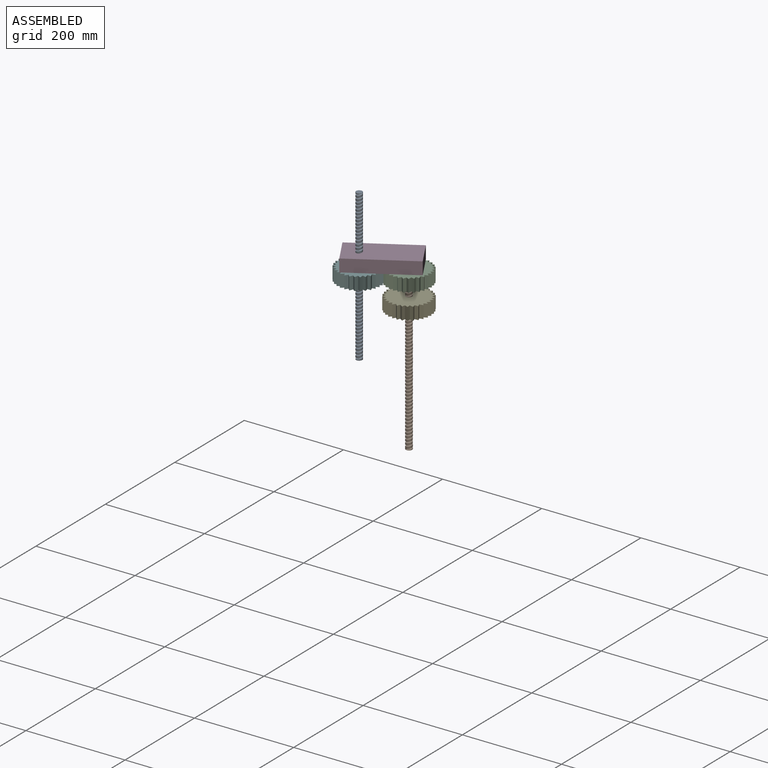
[diagram: assembled view]
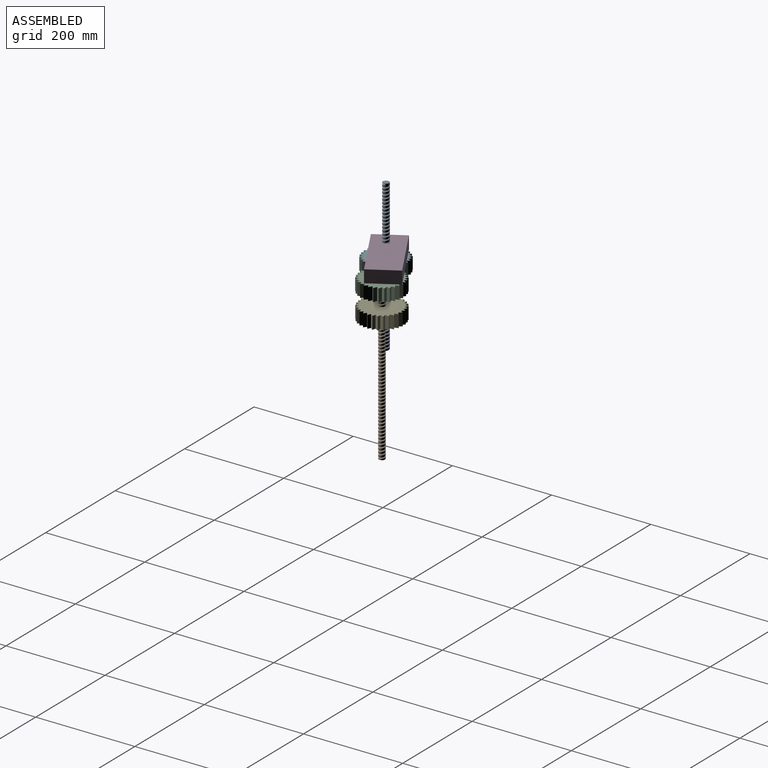
[diagram: assembled view, second angle]
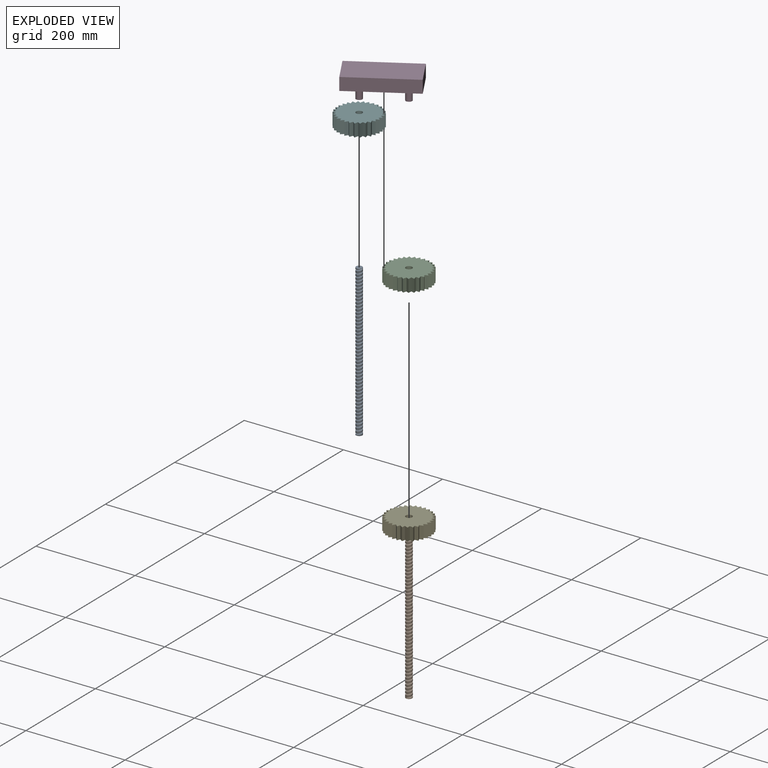
[diagram: exploded view]
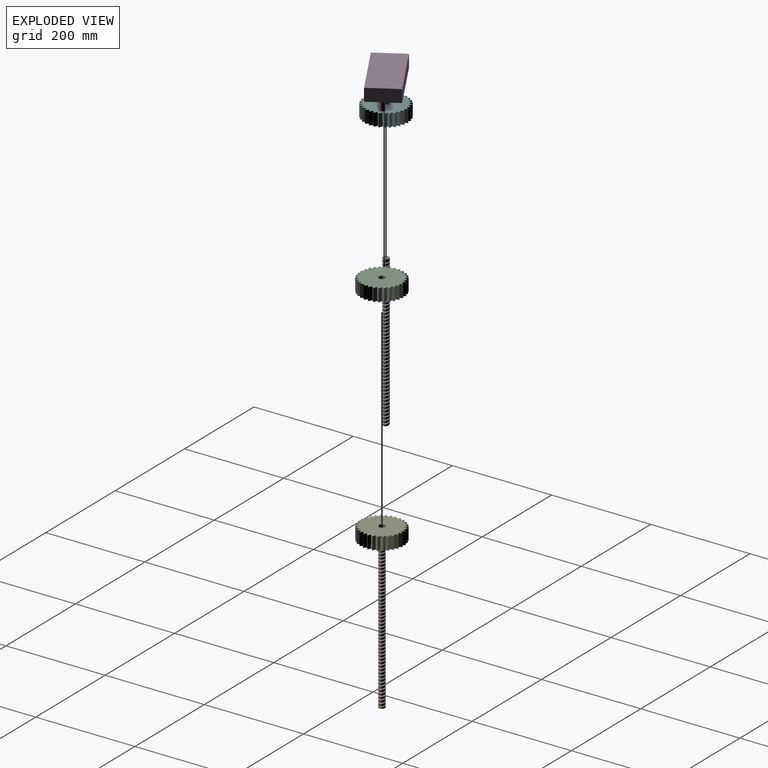
[diagram: exploded view, second angle]
ASSEMBLY  parts=6 mates=6
PART A: 6 faces, bbox 13.4x307x15.4 mm
  f0: cylinder r=6.35mm len=304.8mm, axis (0,1,0), area 10728.7mm2, adj f1,f2,f3,f4,f5
  f1: plane 13.43x12.09mm, normal (0,-1,0), area 111.1mm2, adj f0,f4,f5
  f2: plane 12.7x12.7mm, normal (0,1,0), area 126.7mm2, adj f0
  f3: plane 2.54x2.2mm, normal (0,0,-1), area 2.8mm2, adj f0,f4,f5
  f4: bspline ~306.07x14.66mm, area 4068.5mm2, adj f0,f1,f3,f5
  f5: bspline ~305.01x14.66mm, area 4044.6mm2, adj f0,f1,f3,f4
PART B: same geometry as A
PART C: 63 faces, bbox 88.4x88.1x25.4 mm
  f0: plane 25.4x6.87mm, normal (-0.07,-1,0), area 175mm2, adj f1,f59,f60,f61
  f1: plane 25.4x7.48mm, normal (-0.96,0.27,0), area 197.5mm2, adj f0,f2,f60,f61
  f2: plane 25.4x6.82mm, normal (0.14,-0.99,0), area 175mm2, adj f1,f3,f60,f61
  f3: plane 25.4x7.76mm, normal (-1,0.07,0), area 197.5mm2, adj f2,f4,f60,f61
  f4: plane 25.4x6.47mm, normal (0.35,-0.94,0), area 175mm2, adj f3,f5,f60,f61
  f5: plane 25.4x7.7mm, normal (-0.99,-0.14,0), area 197.5mm2, adj f4,f6,f60,f61
  f6: plane 25.4x5.83mm, normal (0.53,-0.85,0), area 175mm2, adj f5,f7,f60,f61
  f7: plane 25.4x7.31mm, normal (-0.94,-0.34,0), area 197.5mm2, adj f6,f8,f60,f61
  f8: plane 25.4x4.94mm, normal (0.7,-0.72,0), area 175mm2, adj f7,f9,f60,f61
  f9: plane 25.4x6.59mm, normal (-0.85,-0.53,0), area 197.5mm2, adj f8,f10,f60,f61
  f10: plane 25.4x5.73mm, normal (0.83,-0.56,0), area 175mm2, adj f9,f11,f60,f61
  f11: plane 25.4x5.59mm, normal (-0.72,-0.7,0), area 197.5mm2, adj f10,f12,f60,f61
  f12: plane 25.4x6.4mm, normal (0.93,-0.37,0), area 175mm2, adj f11,f13,f60,f61
  f13: plane 25.4x6.45mm, normal (-0.56,-0.83,0), area 197.5mm2, adj f12,f14,f60,f61
  f14: plane 25.4x6.79mm, normal (0.99,-0.17,0), area 175mm2, adj f13,f15,f60,f61
  f15: plane 25.4x7.21mm, normal (-0.37,-0.93,0), area 197.5mm2, adj f14,f16,f60,f61
  f16: plane 25.4x6.88mm, normal (1,0.04,0), area 175mm2, adj f15,f17,f60,f61
  f17: plane 25.4x7.66mm, normal (-0.17,-0.99,0), area 197.5mm2, adj f16,f18,f60,f61
  f18: plane 25.4x6.68mm, normal (0.97,0.25,0), area 175mm2, adj f17,f19,f60,f61
  f19: plane 25.4x7.77mm, normal (0.04,-1,0), area 197.5mm2, adj f18,f20,f60,f61
  f20: plane 25.4x6.18mm, normal (0.9,0.44,0), area 175mm2, adj f19,f21,f60,f61
  f21: plane 25.4x7.54mm, normal (0.24,-0.97,0), area 197.5mm2, adj f20,f22,f60,f61
  f22: plane 25.4x5.41mm, normal (0.79,0.62,0), area 175mm2, adj f21,f23,f60,f61
  f23: plane 25.4x6.99mm, normal (0.44,-0.9,0), area 197.5mm2, adj f22,f24,f60,f61
  f24: plane 25.4x5.29mm, normal (0.64,0.77,0), area 175mm2, adj f23,f25,f60,f61
  f25: plane 25.4x6.12mm, normal (0.62,-0.79,0), area 197.5mm2, adj f24,f26,f60,f61
  f26: plane 25.4x6.09mm, normal (0.47,0.88,0), area 175mm2, adj f25,f27,f60,f61
  f27: plane 25.4x5.96mm, normal (0.77,-0.64,0), area 197.5mm2, adj f26,f28,f60,f61
  f28: plane 25.4x6.63mm, normal (0.27,0.96,0), area 175mm2, adj f27,f29,f60,f61
  f29: plane 25.4x6.87mm, normal (0.88,-0.47,0), area 197.5mm2, adj f28,f30,f60,f61
  f30: plane 25.4x6.87mm, normal (0.07,1,0), area 175mm2, adj f29,f31,f60,f61
  f31: plane 25.4x7.48mm, normal (0.96,-0.27,0), area 197.5mm2, adj f30,f32,f60,f61
  f32: plane 25.4x6.82mm, normal (-0.14,0.99,0), area 175mm2, adj f31,f33,f60,f61
  f33: plane 25.4x7.76mm, normal (1,-0.07,0), area 197.5mm2, adj f32,f34,f60,f61
  f34: plane 25.4x6.47mm, normal (-0.35,0.94,0), area 175mm2, adj f33,f35,f60,f61
  f35: plane 25.4x7.7mm, normal (0.99,0.14,0), area 197.5mm2, adj f34,f36,f60,f61
  f36: plane 25.4x5.83mm, normal (-0.53,0.85,0), area 175mm2, adj f35,f37,f60,f61
  f37: plane 25.4x7.31mm, normal (0.94,0.34,0), area 197.5mm2, adj f36,f38,f60,f61
  f38: plane 25.4x4.94mm, normal (-0.7,0.72,0), area 175mm2, adj f37,f39,f60,f61
  f39: plane 25.4x6.59mm, normal (0.85,0.53,0), area 197.5mm2, adj f38,f40,f60,f61
  f40: plane 25.4x5.73mm, normal (-0.83,0.56,0), area 175mm2, adj f39,f41,f60,f61
  f41: plane 25.4x5.59mm, normal (0.72,0.7,0), area 197.5mm2, adj f40,f42,f60,f61
  f42: plane 25.4x6.4mm, normal (-0.93,0.37,0), area 175mm2, adj f41,f43,f60,f61
  f43: plane 25.4x6.45mm, normal (0.56,0.83,0), area 197.5mm2, adj f42,f44,f60,f61
  f44: plane 25.4x6.79mm, normal (-0.99,0.17,0), area 175mm2, adj f43,f45,f60,f61
  f45: plane 25.4x7.21mm, normal (0.37,0.93,0), area 197.5mm2, adj f44,f46,f60,f61
  f46: plane 25.4x6.88mm, normal (-1,-0.04,0), area 175mm2, adj f45,f47,f60,f61
  f47: plane 25.4x7.66mm, normal (0.17,0.99,0), area 197.5mm2, adj f46,f48,f60,f61
  f48: plane 25.4x6.68mm, normal (-0.97,-0.25,0), area 175mm2, adj f47,f49,f60,f61
  f49: plane 25.4x7.77mm, normal (-0.04,1,0), area 197.5mm2, adj f48,f50,f60,f61
  f50: plane 25.4x6.18mm, normal (-0.9,-0.44,0), area 175mm2, adj f49,f51,f60,f61
  f51: plane 25.4x7.54mm, normal (-0.24,0.97,0), area 197.5mm2, adj f50,f52,f60,f61
  f52: plane 25.4x5.41mm, normal (-0.79,-0.62,0), area 175mm2, adj f51,f53,f60,f61
  f53: plane 25.4x6.99mm, normal (-0.44,0.9,0), area 197.5mm2, adj f52,f54,f60,f61
  f54: plane 25.4x5.29mm, normal (-0.64,-0.77,0), area 175mm2, adj f53,f55,f60,f61
  f55: plane 25.4x6.12mm, normal (-0.62,0.79,0), area 197.5mm2, adj f54,f56,f60,f61
  f56: plane 25.4x6.09mm, normal (-0.47,-0.88,0), area 175mm2, adj f55,f57,f60,f61
  f57: plane 25.4x5.96mm, normal (-0.77,0.64,0), area 197.5mm2, adj f56,f58,f60,f61
  f58: plane 25.4x6.63mm, normal (-0.27,-0.96,0), area 175mm2, adj f57,f59,f60,f61
  f59: plane 25.4x6.87mm, normal (-0.88,0.47,0), area 197.5mm2, adj f0,f58,f60,f61
  f60: plane 88.4x88.06mm, normal (0,0,1), area 5182.2mm2, adj f0,f1,f2,f3,f4,f5,f6,f7
  f61: plane 88.4x88.06mm, normal (0,0,-1), area 5182.2mm2, adj f0,f1,f2,f3,f4,f5,f6,f7
  f62: cylinder r=6.35mm len=25.4mm, axis (0,0,1), area 1013.4mm2, adj f60,f61
PART D: 10 faces, bbox 138.3x63.2x50.8 mm
  f0: cylinder r=6.35mm len=25.4mm, axis (0,0,-1), area 1013.4mm2, adj f1,f8
  f1: plane 12.7x12.7mm, normal (0,0,1), area 126.7mm2, adj f0
  f2: cylinder r=6.35mm len=25.4mm, axis (0,0,-1), area 1013.4mm2, adj f3,f8
  f3: plane 12.7x12.7mm, normal (0,0,1), area 126.7mm2, adj f2
  f4: plane 63.18x25.4mm, normal (-1,0,0), area 1604.8mm2, adj f5,f7,f8,f9
  f5: plane 138.31x25.4mm, normal (0,-1,0), area 3513.1mm2, adj f4,f6,f8,f9
  f6: plane 63.18x25.4mm, normal (1,0,0), area 1604.8mm2, adj f5,f7,f8,f9
  f7: plane 138.31x25.4mm, normal (0,1,0), area 3513.1mm2, adj f4,f6,f8,f9
  f8: plane 138.31x63.18mm, normal (0,0,1), area 8485.2mm2, adj f0,f2,f4,f5,f6,f7
  f9: plane 138.31x63.18mm, normal (0,0,-1), area 8738.6mm2, adj f4,f5,f6,f7
PART E: same geometry as C
PART F: same geometry as C
PLACE A rot(axis=(0.14,-0.7,-0.7),164.5deg) t=(-17.76,13.96,-158.28)mm
PLACE B rot(axis=(-0.71,-0.5,0.5),109.6deg) t=(53.49,55.65,-623.66)mm
PLACE C rot(axis=(-0.17,-0.99,0),180deg) t=(53.49,55.65,-293.46)mm
PLACE D rot(axis=(0.26,-0.97,0),180deg) t=(33.65,44.04,-268.06)mm fixed
PLACE E rot(axis=(0,0,1),73.1deg) t=(53.49,55.65,-369.83)mm
PLACE F rot(axis=(0.64,-0.77,0),180deg) t=(-17.76,13.96,-293.46)mm
MATE fastened B.f0 <-> C.f62  axis (0,0,1) through (53.49,55.65,-318.86)mm
MATE planar C.f62 <-> F.f62  axis (0,0,1) through (53.49,55.65,-293.46)mm
MATE cylindrical E.f62 <-> B.f0  axis (0,0,-1) through (53.49,55.65,-369.83)mm
MATE revolute F.f62 <-> D.f2  axis (0,0,-1) through (-17.76,13.96,-318.86)mm
MATE cylindrical A.f0 <-> F.f62  axis (0,0,1) through (-17.76,13.96,-158.28)mm
MATE revolute C.f62 <-> D.f0  axis (0,0,-1) through (53.49,55.65,-318.86)mm
